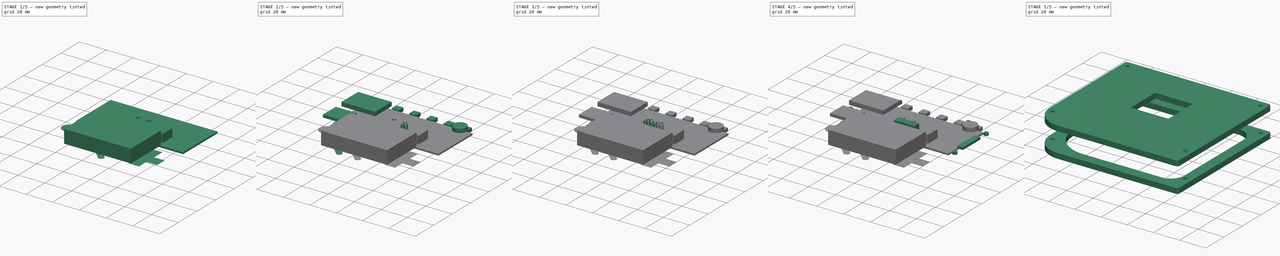
[diagram: build sequence overview — one tinted view per stage of 5, left to right]
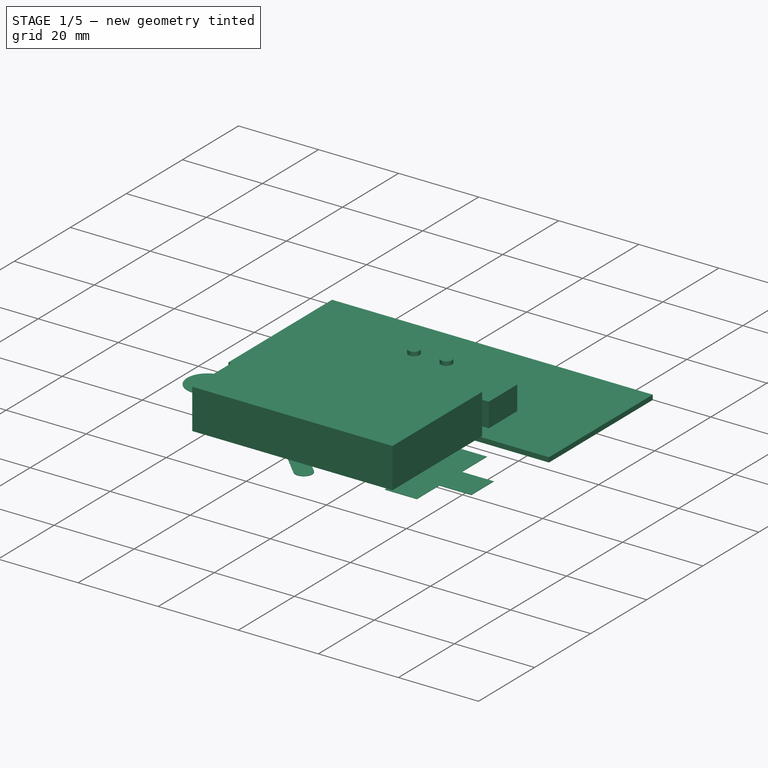
[diagram: stage 1 of 5 — iso view after this stage's code; geometry added in this stage tinted green]
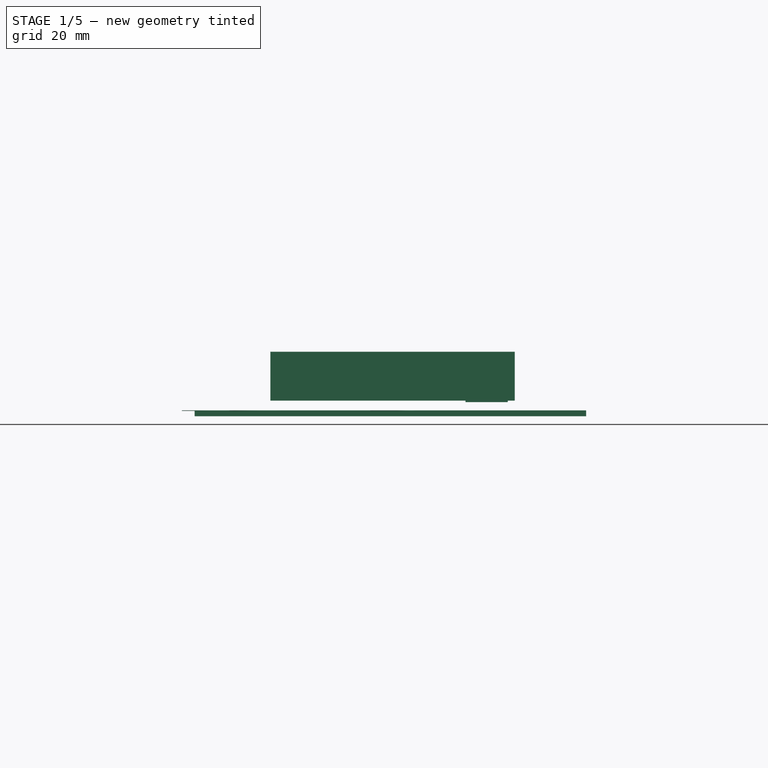
[diagram: stage 1 of 5 — front view after this stage's code; geometry added in this stage tinted green]
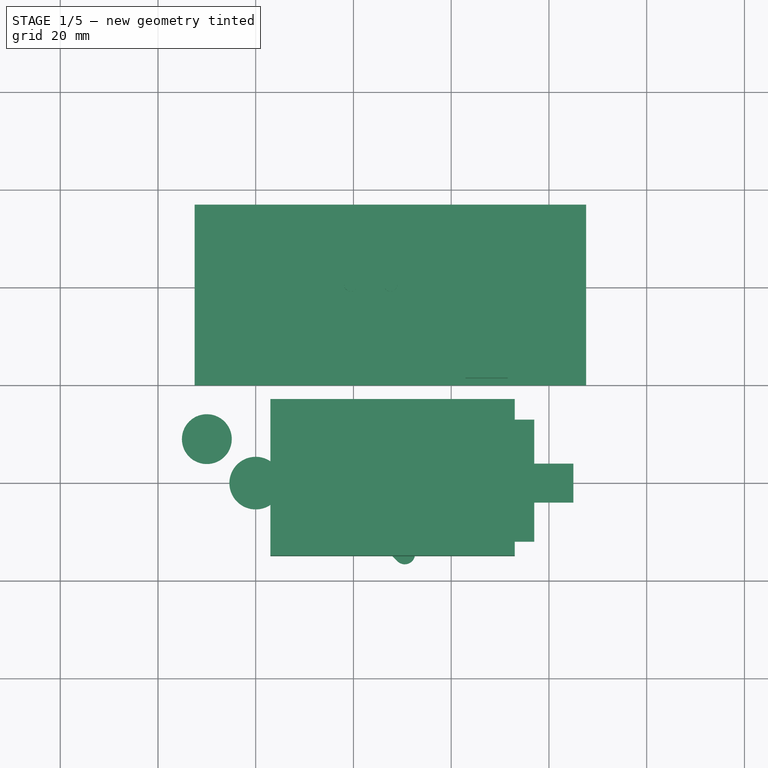
[diagram: stage 1 of 5 — top view after this stage's code; geometry added in this stage tinted green]
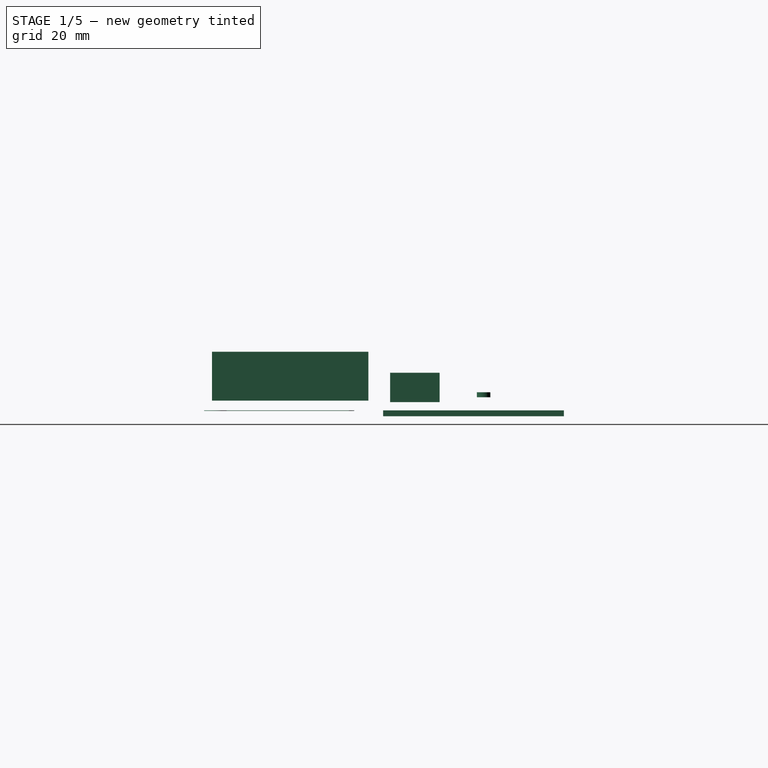
[diagram: stage 1 of 5 — right view after this stage's code; geometry added in this stage tinted green]
FCSTD DOCUMENT  (FreeCAD 0.16R6710 (Git))
Label: case002gbish
License: All rights reserved
LicenseURL: http://en.wikipedia.org/wiki/All_rights_reserved
objects: Part::Extrusion×38, Part::Feature×32, Sketcher::SketchObject×10, Part::MultiFuse×3, Part::Cut×2, Part::Compound×2, Part::FeaturePython×1, Part::Box×1
note: 89 computed .brp shape members not serialized (recipe doc carries the construction recipe); baked Part::Feature solids carry a one-line shape summary decoded from their .brp

FEATURE [Part::Extrusion] Extrude_Wire007  label="Select_Extrude"
  Base = -> Wire007
  Dir = (0,0,-0.1)
  Solid = true
FEATURE [Part::Extrusion] Extrude_Circle019  label="abtn_Extrude"
  Base = -> Circle019
  Dir = (0,0,-0.1)
  Solid = true
FEATURE [Part::Extrusion] Extrude_Circle020  label="bbtn_Extrude"
  Base = -> Circle020
  Dir = (0,0,-0.1)
  Solid = true
FEATURE [Sketcher::SketchObject] Sketch004
  sketch-geometry (13):
    g0: LineSegment StartX=77 StartY=24 StartZ=0 EndX=85 EndY=24 EndZ=0
    g1: LineSegment StartX=85 StartY=24 StartZ=0 EndX=85 EndY=16 EndZ=0
    g2: LineSegment StartX=85 StartY=16 StartZ=0 EndX=77 EndY=16 EndZ=0
    g3: LineSegment StartX=77 StartY=16 StartZ=0 EndX=77 EndY=8 EndZ=0
    g4: LineSegment StartX=77 StartY=8 StartZ=0 EndX=69 EndY=8 EndZ=0
    g5: LineSegment StartX=69 StartY=8 StartZ=0 EndX=69 EndY=16 EndZ=0
    g6: LineSegment StartX=69 StartY=16 StartZ=0 EndX=61 EndY=16 EndZ=0
    g7: LineSegment StartX=61 StartY=16 StartZ=0 EndX=61 EndY=24 EndZ=0
    g8: LineSegment StartX=61 StartY=24 StartZ=0 EndX=69 EndY=24 EndZ=0
    g9: LineSegment StartX=69 StartY=24 StartZ=0 EndX=69 EndY=33 EndZ=0
    g10: LineSegment StartX=69 StartY=33 StartZ=0 EndX=77 EndY=33 EndZ=0
    g11: LineSegment StartX=77 StartY=33 StartZ=0 EndX=77 EndY=24.1 EndZ=0
    g12: LineSegment StartX=77 StartY=24 StartZ=0 EndX=77 EndY=24.1 EndZ=0
  constraints (4):
    c: DistanceX(g0) = 77
    c: DistanceY(g0) = 24
    c: Coincident(g0,g12)
    c: Coincident(g11,g12)
FEATURE [Part::Extrusion] Extrude_Sketch004  label="dpad001"
  Base = -> Sketch004
  Dir = (0,0,-0.1)
  Solid = true
FEATURE [Part::Extrusion] Extrude_Wire002  label="batConOutline_Extrude"
  Base = -> Wire002
  Dir = (0,0,6)
  Solid = true
FEATURE [Part::Extrusion] Extrude_Wire005  label="lcd_Extrude"
  Base = -> Wire005
  Dir = (0,0,-1.2)
  Solid = true
FEATURE [Part::Extrusion] Extrude_Sketch  label="Buttons_Extrude"
  Base = -> Sketch
  Dir = (0,0,1)
  Solid = true
FEATURE [Sketcher::SketchObject] Sketch005
  ExternalGeometry = -> [Extrude_Sketch]
  Placement = pos=(0,0,2.7) rot=(0,0,1;0rad)
  Support = -> Extrude_Sketch [Face6]
  sketch-geometry (7):
    g0: Circle CenterX=39.4787 CenterY=60.5688 CenterZ=0 NormalX=0 NormalY=0 NormalZ=1 Radius=1.38631
    g1: Circle CenterX=47.5742 CenterY=60.5688 CenterZ=0 NormalX=0 NormalY=0 NormalZ=1 Radius=1.38631
    g2: LineSegment [constr] StartX=42.0765 StartY=63.1395 StartZ=0 EndX=39.4787 EndY=60.5688 EndZ=0
    g3: LineSegment [constr] StartX=39.4787 StartY=60.5688 StartZ=0 EndX=36.8809 EndY=57.9981 EndZ=0
    g4: LineSegment [constr] StartX=39.4787 StartY=60.5688 StartZ=0 EndX=36.8809 EndY=63.1395 EndZ=0
    g5: LineSegment [constr] StartX=44.9764 StartY=63.1395 StartZ=0 EndX=47.5742 EndY=60.5688 EndZ=0
    g6: LineSegment [constr] StartX=47.5742 StartY=60.5688 StartZ=0 EndX=50.172 EndY=63.1395 EndZ=0
  constraints (15):
    c: Coincident(g2,g-4)
    c: Coincident(g3,g0)
    c: Coincident(g3,g-5)
    c: Coincident(g4,g0)
    c: Coincident(g4,g-4)
    c: Coincident(g5,g-3)
    c: Coincident(g5,g1)
    c: Coincident(g6,g1)
    c: Coincident(g6,g-3)
    c: Equal(g6,g5)
    c: Equal(g5,g2)
    c: Equal(g2,g4)
    c: Equal(g4,g3)
    c: Coincident(g0,g2)
    c: Equal(g0,g1)
FEATURE [Part::Extrusion] Extrude_Sketch005  label="Sketch005_Extrude"
  Base = -> Sketch005
  Dir = (0,0,1)
  Solid = true
FEATURE [Part::Box] Box  label="Battery"
  Height = 10
  Length = 50
  Placement = pos=(23,5,2) rot=(0,0,1;0rad)
  Width = 32
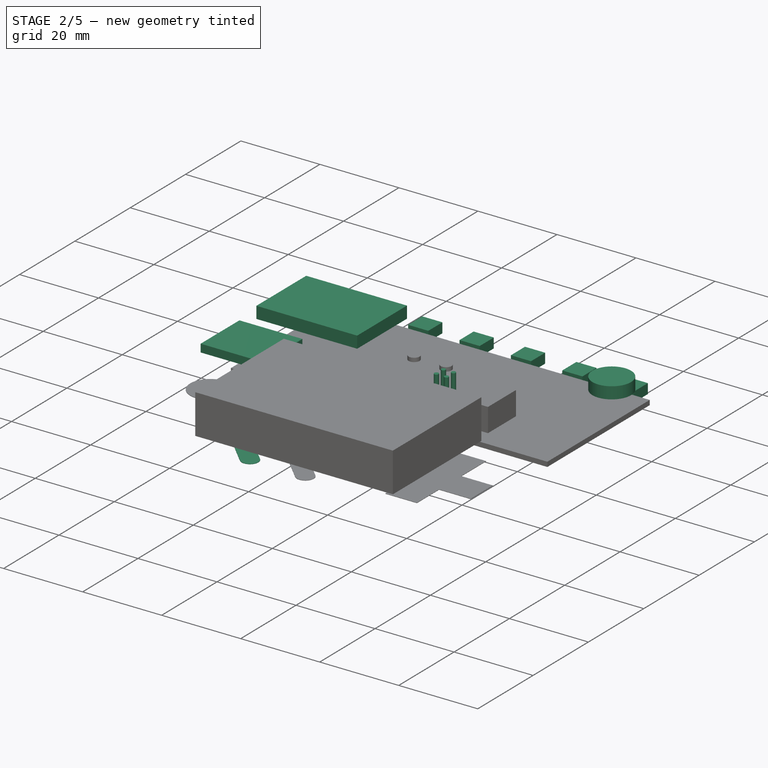
[diagram: stage 2 of 5 — iso view after this stage's code; geometry added in this stage tinted green]
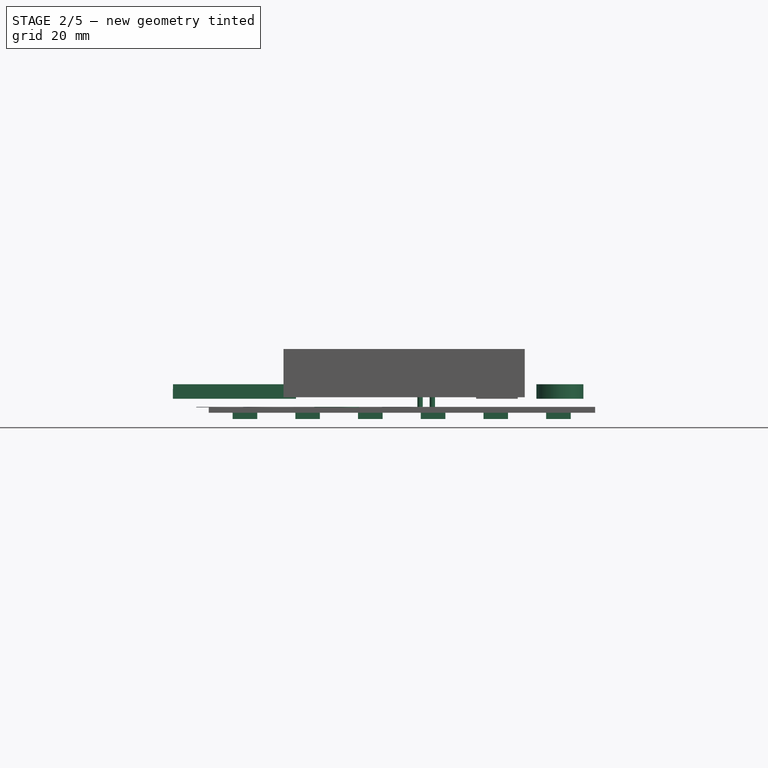
[diagram: stage 2 of 5 — front view after this stage's code; geometry added in this stage tinted green]
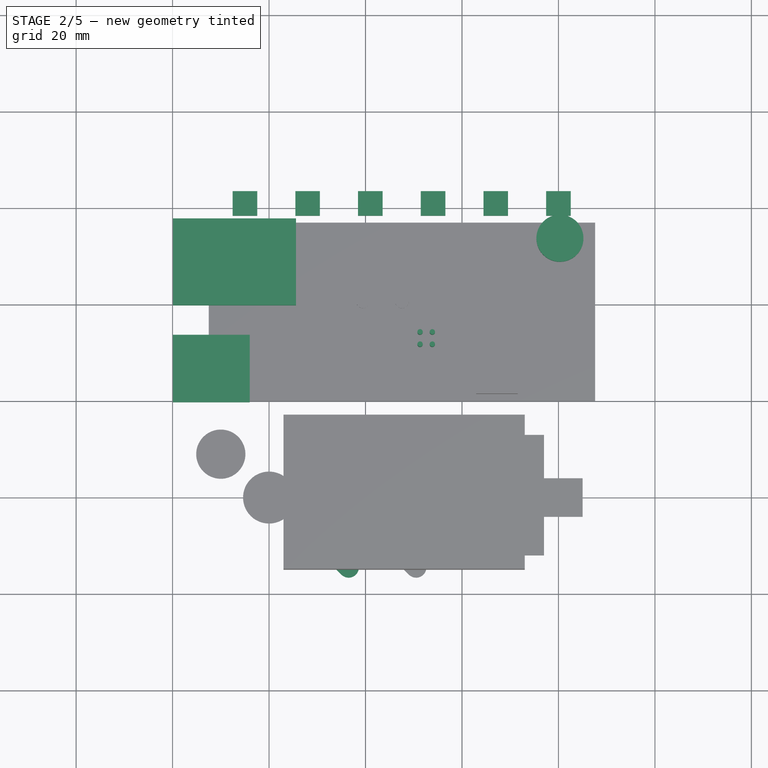
[diagram: stage 2 of 5 — top view after this stage's code; geometry added in this stage tinted green]
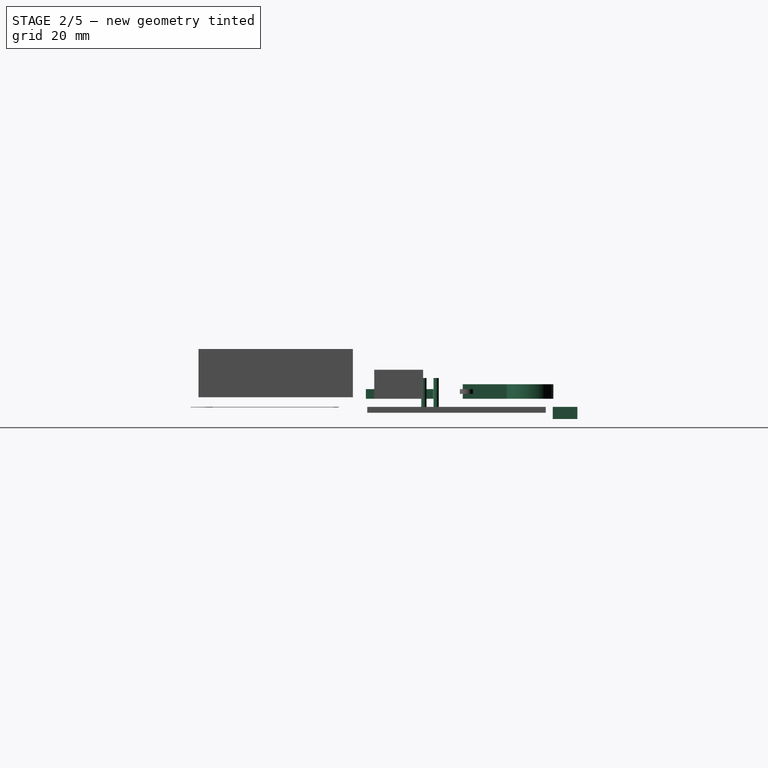
[diagram: stage 2 of 5 — right view after this stage's code; geometry added in this stage tinted green]
FEATURE [Part::Extrusion] Extrude_Circle015  label="Circle015_Extrude"
  Base = -> Circle015
  Dir = (0,0,6)
  Solid = true
FEATURE [Part::Extrusion] Extrude_Circle016  label="Circle016_Extrude"
  Base = -> Circle016
  Dir = (0,0,6)
  Solid = true
FEATURE [Part::Extrusion] Extrude_Circle017  label="Circle017_Extrude"
  Base = -> Circle017
  Dir = (0,0,6)
  Solid = true
FEATURE [Part::Extrusion] Extrude_Circle018  label="Circle018_Extrude"
  Base = -> Circle018
  Dir = (0,0,6)
  Solid = true
FEATURE [Part::Extrusion] Extrude_Sketch002  label="sdouline_Extrude"
  Base = -> Sketch002
  Dir = (0,0,2)
  Solid = true
FEATURE [Part::Extrusion] Extrude_Wire003  label="ESP32Outline_Extrude"
  Base = -> Wire003
  Dir = (0,0,3)
  Solid = true
FEATURE [Part::Extrusion] Extrude_Polyline1548  label="VibratorOutline_Extrude"
  Base = -> Polyline1548
  Dir = (0,0,3)
  Solid = true
FEATURE [Part::Extrusion] Extrude_Sketch003  label="ledsOutline_Extrude"
  Base = -> Sketch003
  Dir = (0,0,-2.5)
  Solid = true
FEATURE [Part::Extrusion] Extrude_Wire006  label="Start_Extrude"
  Base = -> Wire006
  Dir = (0,0,-0.1)
  Solid = true
FEATURE [Part::Compound] Compound  label="CapButtons"
  Links = -> [Extrude_Sketch004,Extrude_Wire006,Extrude_Circle019,Extrude_Wire007,Extrude_Circle020,Fusion001001]
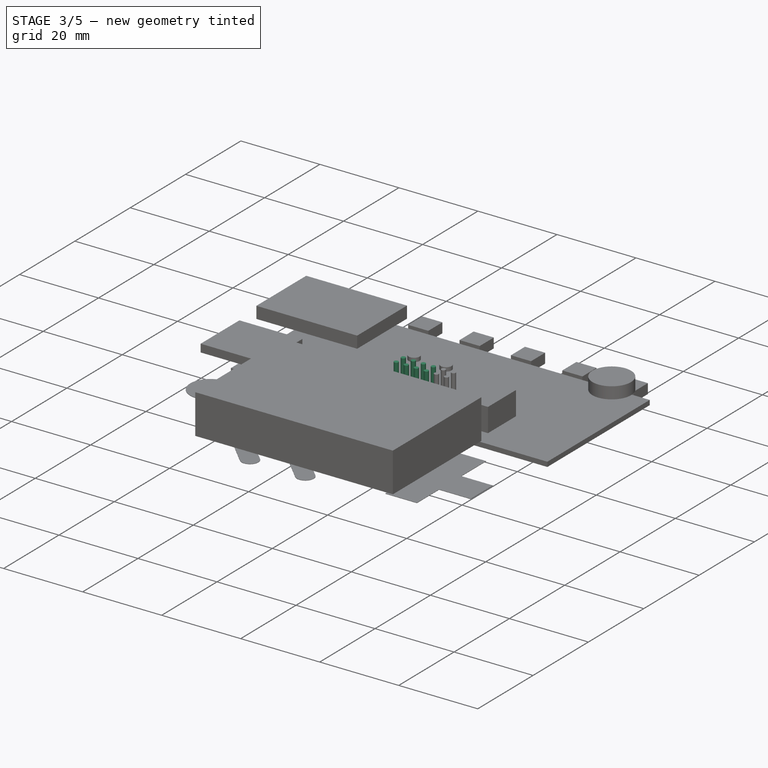
[diagram: stage 3 of 5 — iso view after this stage's code; geometry added in this stage tinted green]
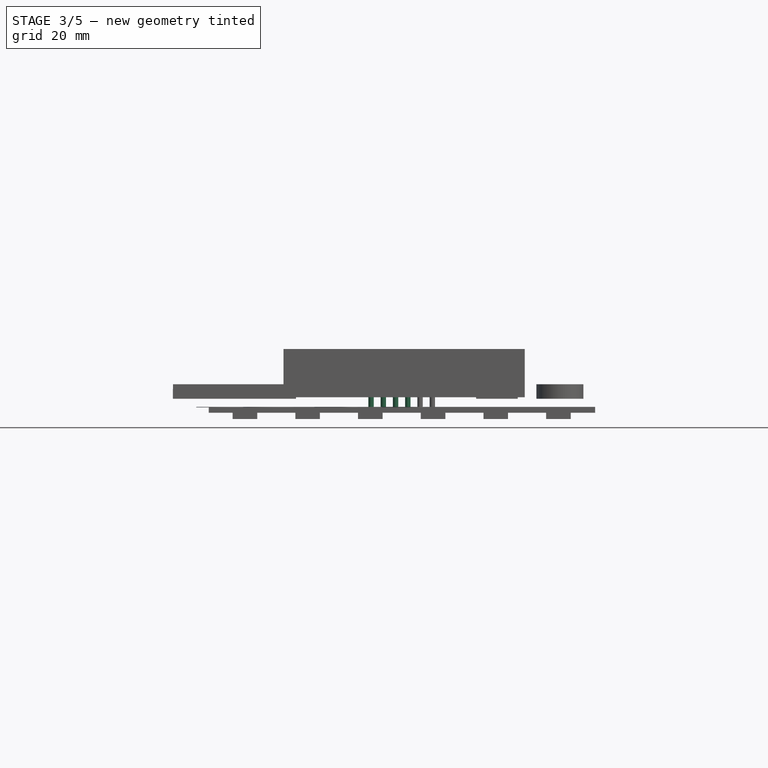
[diagram: stage 3 of 5 — front view after this stage's code; geometry added in this stage tinted green]
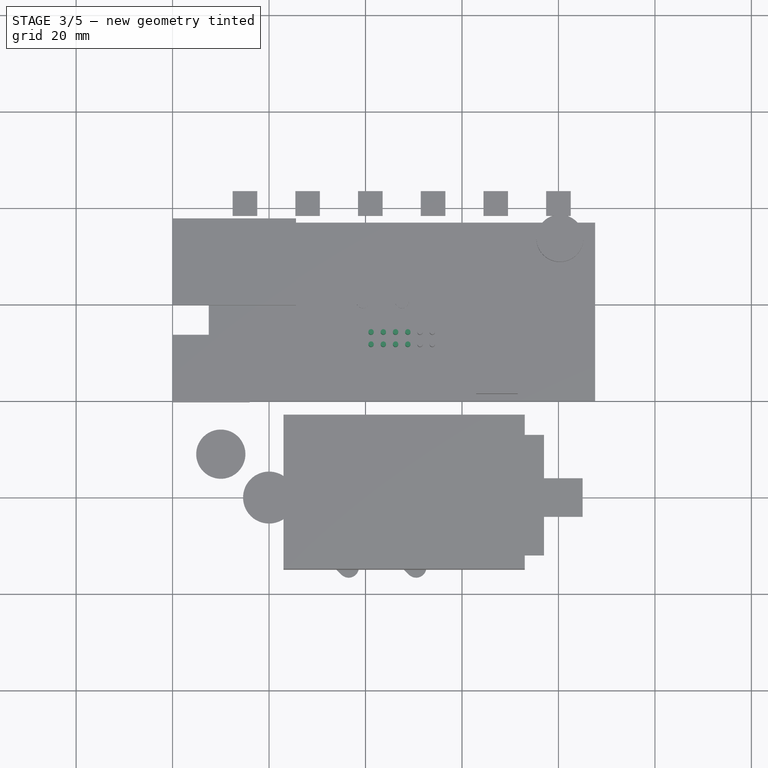
[diagram: stage 3 of 5 — top view after this stage's code; geometry added in this stage tinted green]
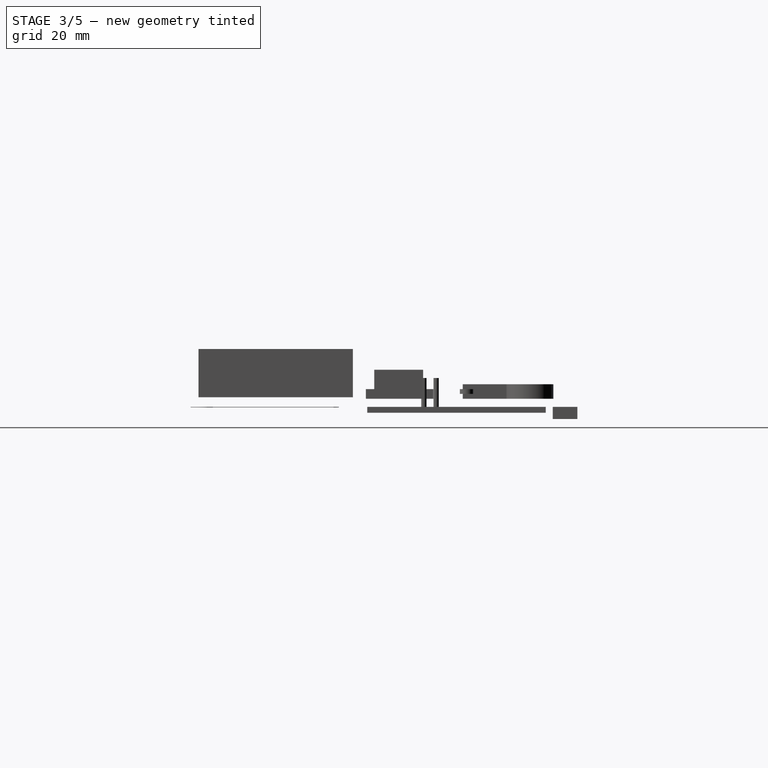
[diagram: stage 3 of 5 — right view after this stage's code; geometry added in this stage tinted green]
FEATURE [Part::Extrusion] Extrude_Circle007  label="Circle007_Extrude"
  Base = -> Circle007
  Dir = (0,0,6)
  Solid = true
FEATURE [Part::Extrusion] Extrude_Circle008  label="Circle008_Extrude"
  Base = -> Circle008
  Dir = (0,0,6)
  Solid = true
FEATURE [Part::Extrusion] Extrude_Circle009  label="Circle009_Extrude"
  Base = -> Circle009
  Dir = (0,0,6)
  Solid = true
FEATURE [Part::Extrusion] Extrude_Circle010  label="Circle010_Extrude"
  Base = -> Circle010
  Dir = (0,0,6)
  Solid = true
FEATURE [Part::Extrusion] Extrude_Circle011  label="Circle011_Extrude"
  Base = -> Circle011
  Dir = (0,0,6)
  Solid = true
FEATURE [Part::Extrusion] Extrude_Circle012  label="Circle012_Extrude"
  Base = -> Circle012
  Dir = (0,0,6)
  Solid = true
FEATURE [Part::Extrusion] Extrude_Circle013  label="Circle013_Extrude"
  Base = -> Circle013
  Dir = (0,0,6)
  Solid = true
FEATURE [Part::Extrusion] Extrude_Circle014  label="Circle014_Extrude"
  Base = -> Circle014
  Dir = (0,0,6)
  Solid = true
FEATURE [Part::MultiFuse] Fusion001  label="AuxConn"
  Shapes = -> [Extrude_Circle007,Extrude_Circle015,Extrude_Circle010,Extrude_Circle012,Extrude_Circle013,Extrude_Circle017,Extrude_Circle018,Extrude_Circle008,Extrude_Circle011,Extrude_Circle009,Extrude_Circle016,Extrude_Circle014]
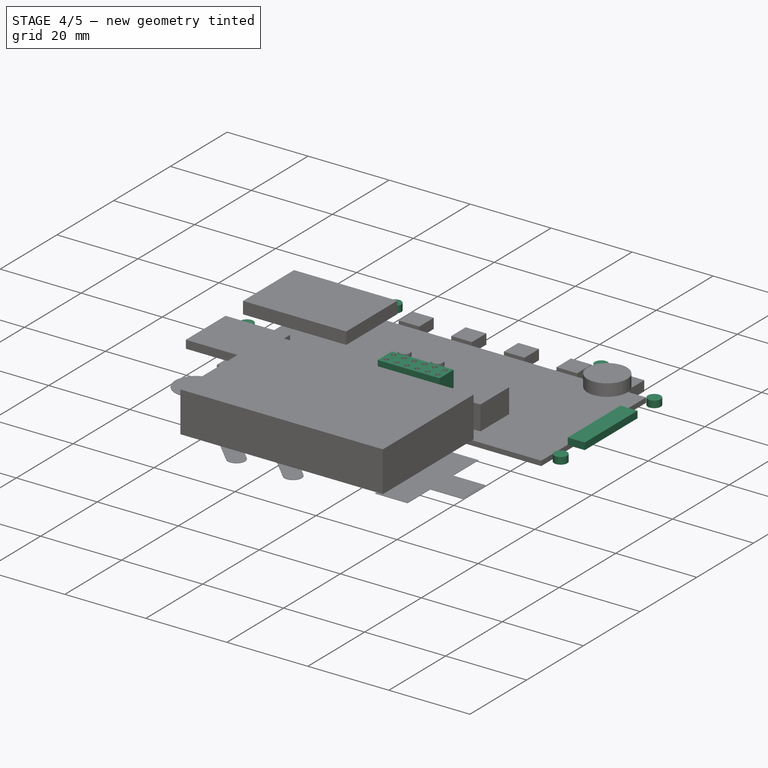
[diagram: stage 4 of 5 — iso view after this stage's code; geometry added in this stage tinted green]
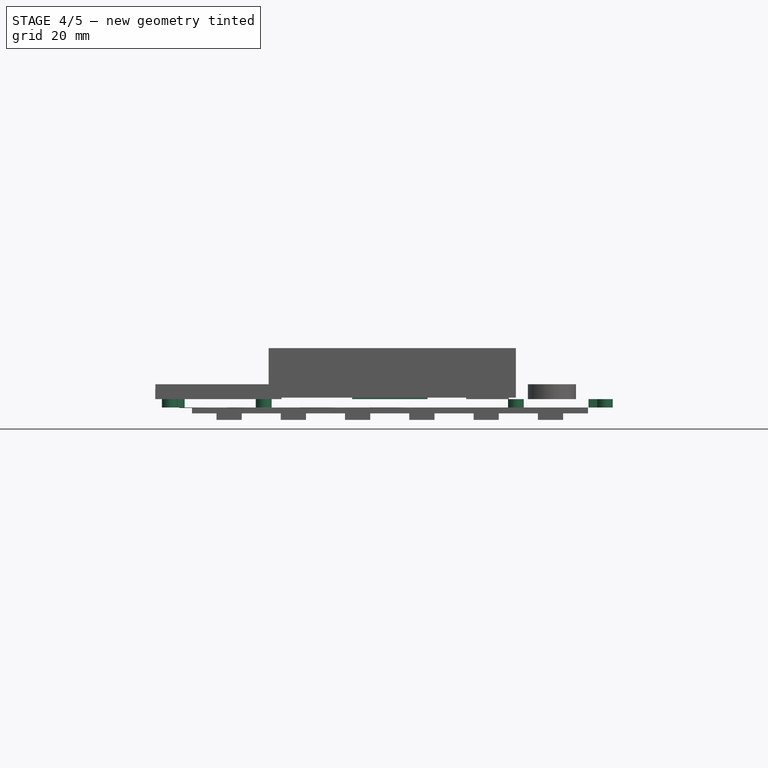
[diagram: stage 4 of 5 — front view after this stage's code; geometry added in this stage tinted green]
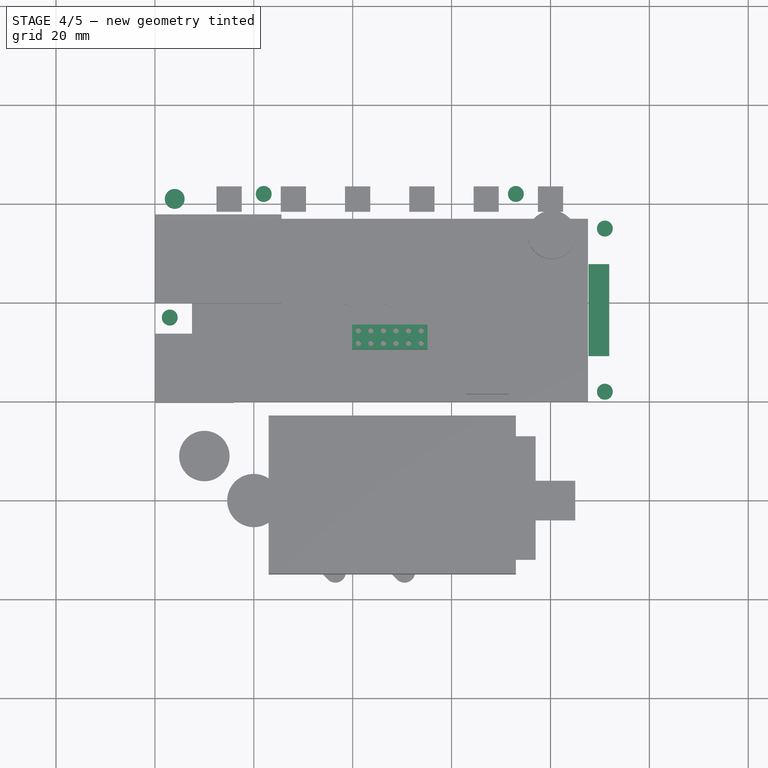
[diagram: stage 4 of 5 — top view after this stage's code; geometry added in this stage tinted green]
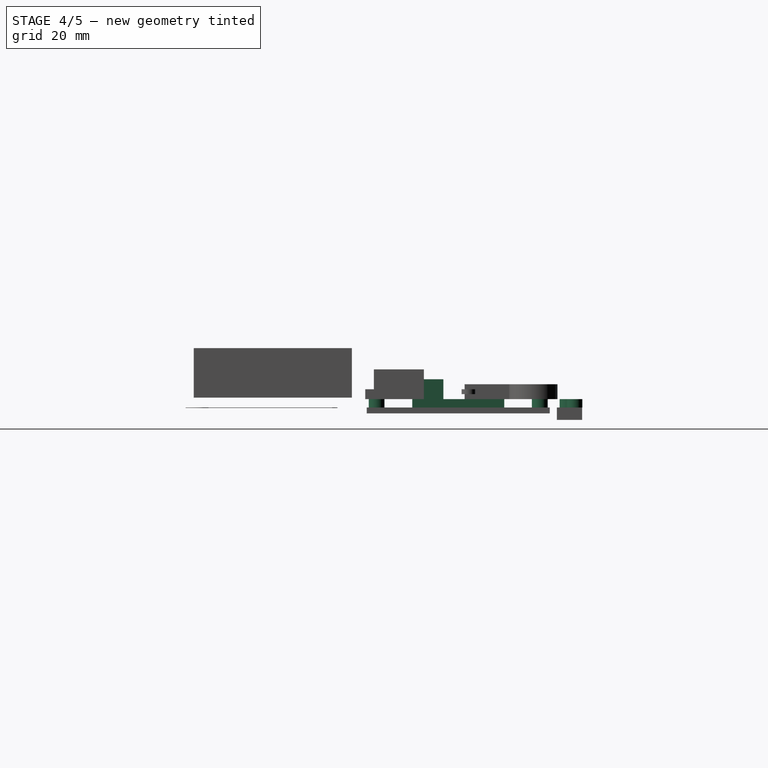
[diagram: stage 4 of 5 — right view after this stage's code; geometry added in this stage tinted green]
FEATURE [Part::Extrusion] Extrude_Circle001  label="Circle001_Extrude"
  Base = -> Circle001
  Dir = (0,0,1.7)
  Solid = true
FEATURE [Part::Extrusion] Extrude_Circle002  label="Circle002_Extrude"
  Base = -> Circle002
  Dir = (0,0,1.7)
  Solid = true
FEATURE [Part::Extrusion] Extrude_Circle003  label="Circle003_Extrude"
  Base = -> Circle003
  Dir = (0,0,1.7)
  Solid = true
FEATURE [Part::Extrusion] Extrude_Circle004  label="Circle004_Extrude"
  Base = -> Circle004
  Dir = (0,0,1.7)
  Solid = true
FEATURE [Part::Extrusion] Extrude_Circle005  label="Circle005_Extrude"
  Base = -> Circle005
  Dir = (0,0,1.7)
  Solid = true
FEATURE [Part::Extrusion] Extrude_Circle006  label="Circle006_Extrude"
  Base = -> Circle006
  Dir = (0,0,1.7)
  Solid = true
FEATURE [Part::Feature] Wire
  shape: bbox 4.2 x 18.6 x 2e-07 mm, 0 faces, 0 solids (baked)
FEATURE [Part::Extrusion] Extrude_Wire  label="lcdWires"
  Base = -> Wire
  Dir = (0,0,1.7)
  Solid = true
FEATURE [Part::Extrusion] Extrude_Sketch001  label="auxConnAoutline_Extrude"
  Base = -> Sketch001
  Dir = (0,0,4)
  Solid = true
FEATURE [Part::FeaturePython] Clone  label="Clone of AuxConn"  # Draft clone (typed FeaturePython)
  Objects = -> [Fusion001]
  Scale = (1,1,1)
FEATURE [Part::Cut] Cut001  label="AuxConnector"
  Base = -> Extrude_Sketch001
  Tool = -> Clone
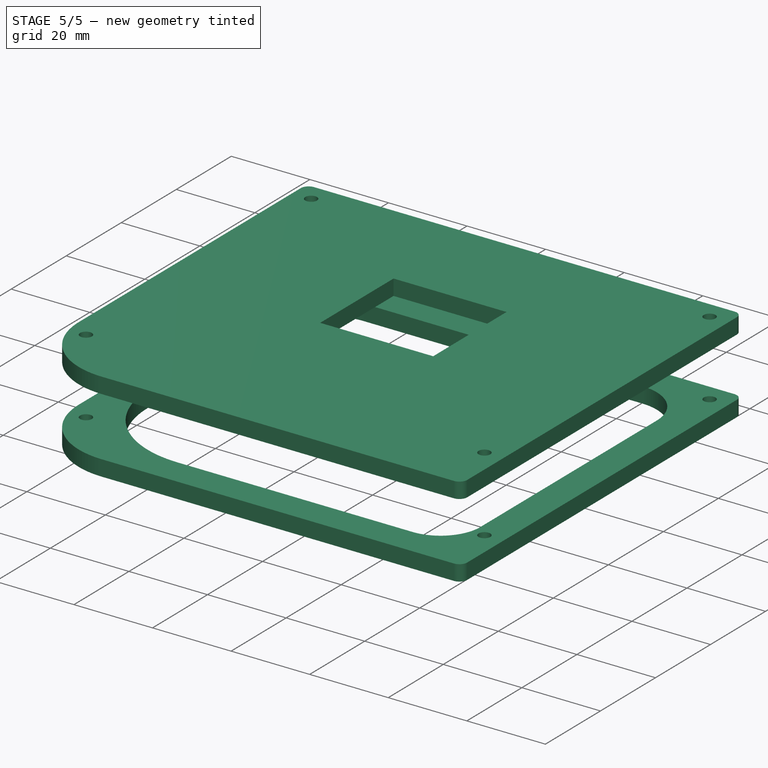
[diagram: stage 5 of 5 — iso view after this stage's code; geometry added in this stage tinted green]
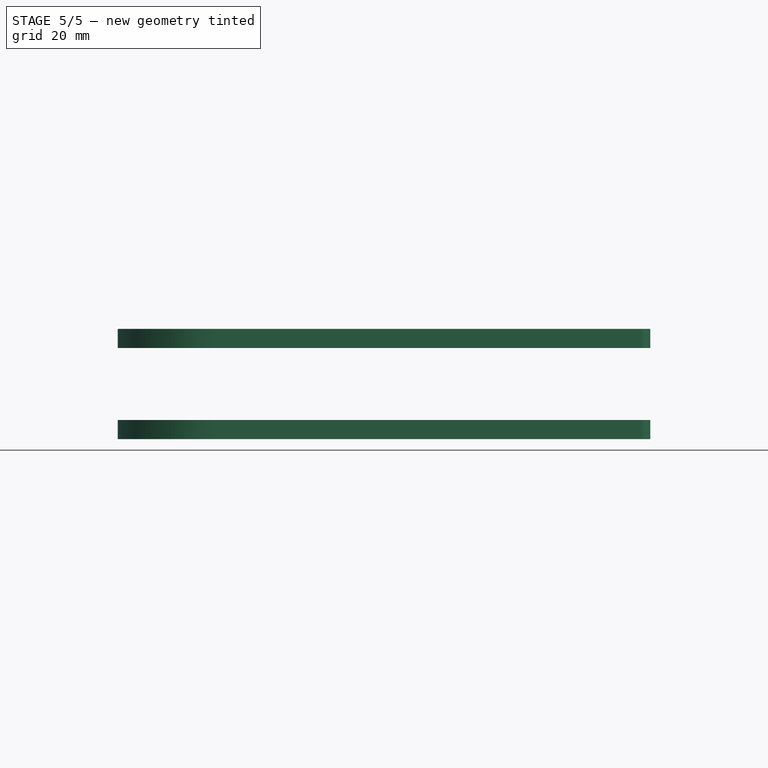
[diagram: stage 5 of 5 — front view after this stage's code; geometry added in this stage tinted green]
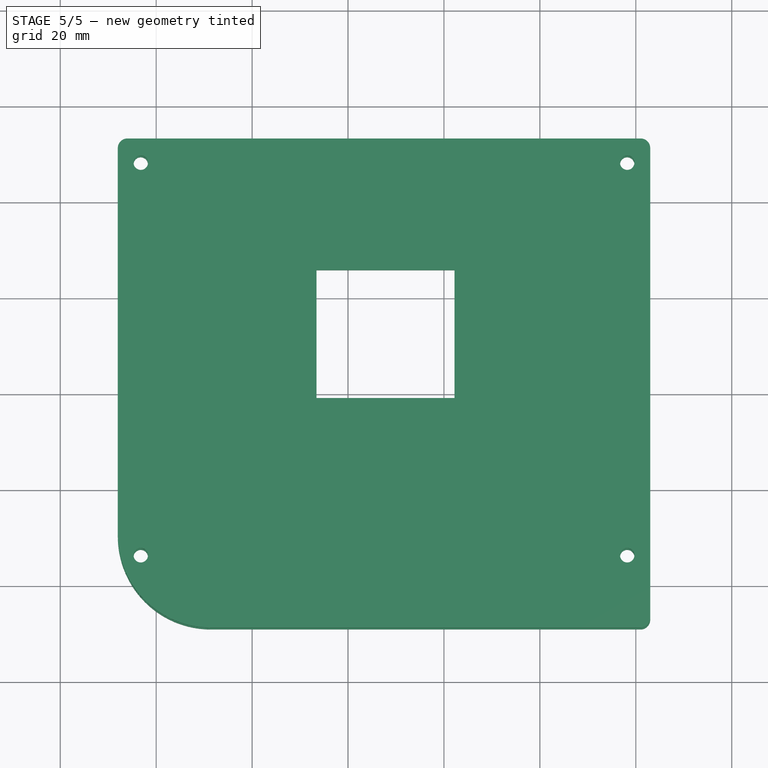
[diagram: stage 5 of 5 — top view after this stage's code; geometry added in this stage tinted green]
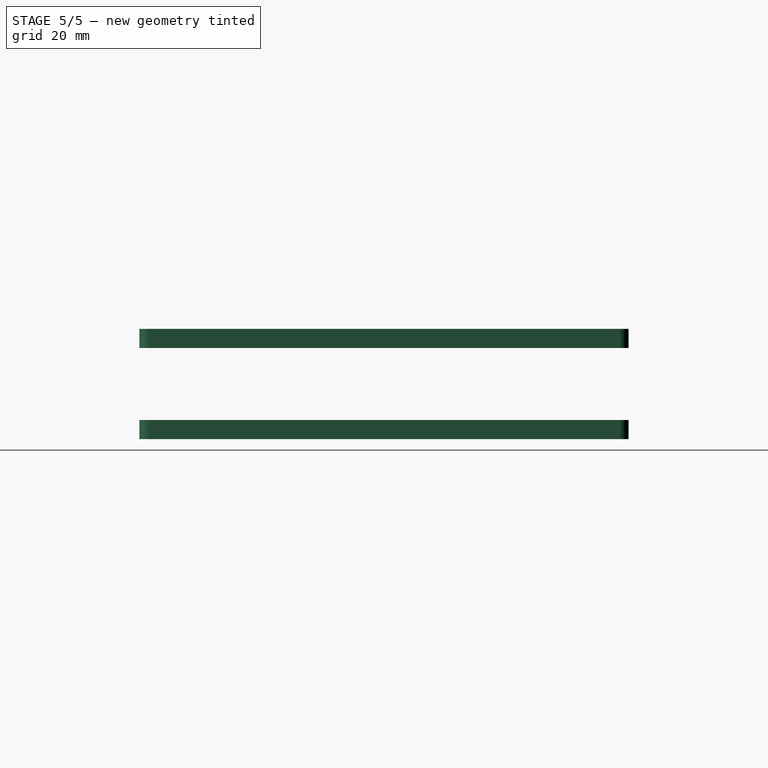
[diagram: stage 5 of 5 — right view after this stage's code; geometry added in this stage tinted green]
FEATURE [Part::Feature] Circle
  shape: bbox 4 x 4 x 2e-07 mm, 0 faces, 0 solids (baked)
FEATURE [Part::Feature] Circle001
  shape: bbox 4 x 4 x 2e-07 mm, 0 faces, 0 solids (baked)
FEATURE [Part::Feature] Circle002 .. Circle006  x5 (patterned run collapsed; names and placements below)
  shape: bbox 3.2 x 3.2 x 2e-07 mm, 0 faces, 0 solids (baked)
FEATURE [Part::Feature] Circle007 .. Circle018  x12 (patterned run collapsed; names and placements below)
  shape: bbox 1.1 x 1.1 x 2e-07 mm, 0 faces, 0 solids (baked)
FEATURE [Part::Feature] Face
  shape: bbox 95 x 86 x 2e-07 mm, 1 faces, 0 solids (baked)
FEATURE [Part::Extrusion] Extrude_Face  label="pcbOutline"
  Base = -> Face
  Dir = (0,0,1.7)
  Solid = true
FEATURE [Part::Extrusion] Extrude_Circle  label="Circle_Extrude"
  Base = -> Circle
  Dir = (0,0,1.7)
  Solid = true
FEATURE [Part::MultiFuse] Fusion  label="Holes"
  Shapes = -> [Extrude_Circle,Extrude_Circle002,Extrude_Circle001,Extrude_Circle005,Extrude_Circle003,Extrude_Circle004,Extrude_Circle006]
FEATURE [Part::Feature] Wire001  label="BatteryArea"
  Placement = pos=(0,0,1.7) rot=(0,0,1;0rad)
  shape: bbox 58.5 x 39.7 x 2e-07 mm, 0 faces, 0 solids (baked)
FEATURE [Part::Feature] Wire002  label="batConOutline"
  Placement = pos=(0,0,1.7) rot=(0,0,1;0rad)
  shape: bbox 8.636 x 10.13 x 2e-07 mm, 0 faces, 0 solids (baked)
FEATURE [Part::Feature] Wire003  label="ESP32Outline"
  Placement = pos=(0,0,1.7) rot=(0,0,1;0rad)
  shape: bbox 25.5 x 18 x 2e-07 mm, 0 faces, 0 solids (baked)
FEATURE [Part::Feature] Polyline1548  label="VibratorOutline"
  Placement = pos=(0,0,1.7) rot=(0,0,1;0rad)
  shape: bbox 9.751 x 9.751 x 2e-07 mm, 0 faces, 0 solids (baked)
FEATURE [Sketcher::SketchObject] Sketch  label="Buttons"
  Placement = pos=(0,0,1.7) rot=(0,0,1;0rad)
  sketch-geometry (9):
    g0: LineSegment StartX=42.0765 StartY=63.1395 StartZ=0 EndX=36.8809 EndY=63.1395 EndZ=0
    g1: LineSegment StartX=36.8809 StartY=63.1395 StartZ=0 EndX=36.8809 EndY=57.9981 EndZ=0
    g2: LineSegment StartX=36.8809 StartY=57.9981 StartZ=0 EndX=42.0765 EndY=57.9981 EndZ=0
    g3: LineSegment StartX=42.0765 StartY=57.9981 StartZ=0 EndX=42.0765 EndY=63.1395 EndZ=0
    g4: LineSegment StartX=44.9764 StartY=63.1395 StartZ=0 EndX=50.172 EndY=63.1395 EndZ=0
    g5: LineSegment StartX=50.172 StartY=63.1395 StartZ=0 EndX=50.172 EndY=57.9981 EndZ=0
    g6: LineSegment StartX=50.172 StartY=57.9981 StartZ=0 EndX=44.9764 EndY=57.9981 EndZ=0
    g7: LineSegment StartX=44.9764 StartY=57.9981 StartZ=0 EndX=44.9764 EndY=63.1395 EndZ=0
    g8: LineSegment [constr] StartX=42.0765 StartY=63.1395 StartZ=0 EndX=44.9764 EndY=63.1395 EndZ=0
  constraints (21):
    c: Coincident(g0,g1)
    c: Coincident(g1,g2)
    c: Coincident(g2,g3)
    c: Coincident(g3,g0)
    c: Horizontal(g0)
    c: Horizontal(g2)
    c: Vertical(g1)
    c: Vertical(g3)
    c: Coincident(g4,g5)
    c: Coincident(g5,g6)
    c: Coincident(g6,g7)
    c: Coincident(g7,g4)
    c: Horizontal(g4)
    c: Horizontal(g6)
    c: Vertical(g5)
    c: Vertical(g7)
    c: Equal(g0,g4)
    c: Equal(g3,g7)
    c: Coincident(g4,g8)
    c: Coincident(g0,g8)
    c: Horizontal(g8)
FEATURE [Sketcher::SketchObject] Sketch001  label="auxConnAoutline"
  Placement = pos=(0,0,1.7) rot=(1,0,0;3.14159rad)
  sketch-geometry (7):
    g0: LineSegment StartX=55.125 StartY=-50.5 StartZ=0 EndX=39.875 EndY=-50.5 EndZ=0
    g1: LineSegment StartX=39.875 StartY=-50.5 StartZ=0 EndX=39.875 EndY=-55.5 EndZ=0
    g2: LineSegment StartX=39.875 StartY=-55.5 StartZ=0 EndX=55.125 EndY=-55.5 EndZ=0
    g3: LineSegment StartX=55.125 StartY=-55.5 StartZ=0 EndX=55.125 EndY=-50.5 EndZ=0
    g4: LineSegment [constr] StartX=41.15 StartY=-51.73 StartZ=0 EndX=39.875 EndY=-50.5 EndZ=0
    g5: LineSegment [constr] StartX=41.15 StartY=-54.27 StartZ=0 EndX=39.875 EndY=-55.5 EndZ=0
    g6: LineSegment [constr] StartX=53.85 StartY=-51.73 StartZ=0 EndX=55.125 EndY=-50.5 EndZ=0
  constraints (15):
    c: Coincident(g0,g1)
    c: Coincident(g1,g2)
    c: Coincident(g2,g3)
    c: Coincident(g3,g0)
    c: Horizontal(g0)
    c: Horizontal(g2)
    c: Vertical(g1)
    c: Vertical(g3)
    c: Coincident(g4,g0)
    c: Coincident(g5,g1)
    c: Coincident(g6,g0)
    c: Equal(g6,g4)
    c: Equal(g4,g5)
    c: Distance(g0) = 15.25
    c: Distance(g3) = 5
FEATURE [Sketcher::SketchObject] Sketch002  label="sdouline"
  Placement = pos=(0,0,1.7) rot=(0,0,1;0rad)
  sketch-geometry (4):
    g0: LineSegment StartX=16.0011 StartY=53.7008 StartZ=0 EndX=0.063418 EndY=53.7008 EndZ=0
    g1: LineSegment StartX=0.063418 StartY=53.7008 StartZ=0 EndX=0.063418 EndY=39.6988 EndZ=0
    g2: LineSegment StartX=0.063418 StartY=39.6988 StartZ=0 EndX=16.0011 EndY=39.6988 EndZ=0
    g3: LineSegment StartX=16.0011 StartY=39.6988 StartZ=0 EndX=16.0011 EndY=53.7008 EndZ=0
  constraints (8):
    c: Coincident(g0,g1)
    c: Coincident(g1,g2)
    c: Coincident(g2,g3)
    c: Coincident(g3,g0)
    c: Horizontal(g0)
    c: Horizontal(g2)
    c: Vertical(g1)
    c: Vertical(g3)
FEATURE [Part::Feature] Wire005  label="lcd"
  shape: bbox 80.1 x 37 x 2e-07 mm, 0 faces, 0 solids (baked)
FEATURE [Part::Feature] Wire006  label="Start"
  shape: bbox 9.243 x 9.243 x 2e-07 mm, 0 faces, 0 solids (baked)
FEATURE [Part::Feature] Wire007  label="Select"
  shape: bbox 9.243 x 9.243 x 2e-07 mm, 0 faces, 0 solids (baked)
FEATURE [Part::Feature] Circle019  label="abtn"
  shape: bbox 10.2 x 10.2 x 2e-07 mm, 0 faces, 0 solids (baked)
FEATURE [Part::Feature] Circle020  label="bbtn"
  shape: bbox 10.77 x 10.77 x 2e-07 mm, 0 faces, 0 solids (baked)
FEATURE [Sketcher::SketchObject] Sketch003  label="ledsOutline"
  sketch-geometry (29):
    g0: LineSegment StartX=12.45 StartY=83.55 StartZ=0 EndX=17.55 EndY=83.55 EndZ=0
    g1: LineSegment StartX=17.55 StartY=83.55 StartZ=0 EndX=17.55 EndY=78.45 EndZ=0
    g2: LineSegment StartX=17.55 StartY=78.45 StartZ=0 EndX=12.45 EndY=78.45 EndZ=0
    g3: LineSegment StartX=12.45 StartY=78.45 StartZ=0 EndX=12.45 EndY=83.55 EndZ=0
    g4: LineSegment StartX=25.45 StartY=83.55 StartZ=0 EndX=30.55 EndY=83.55 EndZ=0
    g5: LineSegment StartX=30.55 StartY=83.55 StartZ=0 EndX=30.55 EndY=78.45 EndZ=0
    g6: LineSegment StartX=30.55 StartY=78.45 StartZ=0 EndX=25.45 EndY=78.45 EndZ=0
    g7: LineSegment StartX=25.45 StartY=78.45 StartZ=0 EndX=25.45 EndY=83.55 EndZ=0
    g8: LineSegment StartX=38.45 StartY=83.55 StartZ=0 EndX=43.55 EndY=83.55 EndZ=0
    g9: LineSegment StartX=43.55 StartY=83.55 StartZ=0 EndX=43.55 EndY=78.45 EndZ=0
    g10: LineSegment StartX=43.55 StartY=78.45 StartZ=0 EndX=38.45 EndY=78.45 EndZ=0
    g11: LineSegment StartX=38.45 StartY=78.45 StartZ=0 EndX=38.45 EndY=83.55 EndZ=0
    g12: LineSegment StartX=51.45 StartY=83.55 StartZ=0 EndX=56.55 EndY=83.55 EndZ=0
    g13: LineSegment StartX=56.55 StartY=83.55 StartZ=0 EndX=56.55 EndY=78.45 EndZ=0
    g14: LineSegment StartX=56.55 StartY=78.45 StartZ=0 EndX=51.45 EndY=78.45 EndZ=0
    g15: LineSegment StartX=51.45 StartY=78.45 StartZ=0 EndX=51.45 EndY=83.55 EndZ=0
    g16: LineSegment StartX=64.45 StartY=83.55 StartZ=0 EndX=69.55 EndY=83.55 EndZ=0
    g17: LineSegment StartX=69.55 StartY=83.55 StartZ=0 EndX=69.55 EndY=78.45 EndZ=0
    g18: LineSegment StartX=69.55 StartY=78.45 StartZ=0 EndX=64.45 EndY=78.45 EndZ=0
    g19: LineSegment StartX=64.45 StartY=78.45 StartZ=0 EndX=64.45 EndY=83.55 EndZ=0
    g20: LineSegment StartX=77.45 StartY=83.55 StartZ=0 EndX=82.55 EndY=83.55 EndZ=0
    g21: LineSegment StartX=82.55 StartY=83.55 StartZ=0 EndX=82.55 EndY=78.45 EndZ=0
    g22: LineSegment StartX=82.55 StartY=78.45 StartZ=0 EndX=77.45 EndY=78.45 EndZ=0
    g23: LineSegment StartX=77.45 StartY=78.45 StartZ=0 EndX=77.45 EndY=83.55 EndZ=0
    g24: LineSegment [constr] StartX=77.45 StartY=83.55 StartZ=0 EndX=69.55 EndY=83.55 EndZ=0
    g25: LineSegment [constr] StartX=64.45 StartY=83.55 StartZ=0 EndX=56.55 EndY=83.55 EndZ=0
    g26: LineSegment [constr] StartX=51.45 StartY=83.55 StartZ=0 EndX=43.55 EndY=83.55 EndZ=0
    g27: LineSegment [constr] StartX=38.45 StartY=83.55 StartZ=0 EndX=30.55 EndY=83.55 EndZ=0
    g28: LineSegment [constr] StartX=25.45 StartY=83.55 StartZ=0 EndX=17.55 EndY=83.55 EndZ=0
  constraints (82):
    c: Coincident(g0,g1)
    c: Coincident(g1,g2)
    c: Coincident(g2,g3)
    c: Coincident(g3,g0)
    c: Horizontal(g0)
    c: Horizontal(g2)
    c: Vertical(g1)
    c: Vertical(g3)
    c: Coincident(g4,g5)
    c: Coincident(g5,g6)
    c: Coincident(g6,g7)
    c: Coincident(g7,g4)
    c: Horizontal(g4)
    c: Horizontal(g6)
    c: Vertical(g5)
    c: Vertical(g7)
    c: Coincident(g8,g9)
    c: Coincident(g9,g10)
    c: Coincident(g10,g11)
    c: Coincident(g11,g8)
    c: Horizontal(g8)
    c: Horizontal(g10)
    c: Vertical(g9)
    c: Vertical(g11)
    c: Coincident(g12,g13)
    c: Coincident(g13,g14)
    c: Coincident(g14,g15)
    c: Coincident(g15,g12)
    c: Horizontal(g12)
    c: Horizontal(g14)
    c: Vertical(g13)
    c: Vertical(g15)
    c: Coincident(g16,g17)
    c: Coincident(g17,g18)
    c: Coincident(g18,g19)
    c: Coincident(g19,g16)
    c: Horizontal(g16)
    c: Horizontal(g18)
    c: Vertical(g17)
    c: Vertical(g19)
    c: Coincident(g20,g21)
    c: Coincident(g21,g22)
    c: Coincident(g22,g23)
    c: Coincident(g23,g20)
    c: Horizontal(g20)
    c: Horizontal(g22)
    c: Vertical(g21)
    c: Vertical(g23)
    c: Coincident(g24,g20)
    c: Coincident(g24,g16)
    c: Coincident(g25,g16)
    c: Coincident(g25,g12)
    c: Coincident(g26,g12)
    c: Coincident(g26,g8)
    c: Horizontal(g26)
    c: Coincident(g27,g8)
    c: Coincident(g27,g4)
    c: Horizontal(g27)
    c: Coincident(g28,g4)
    c: Coincident(g28,g0)
    c: Horizontal(g28)
    c: Horizontal(g24)
    c: Horizontal(g25)
    c: Equal(g20,g16)
    c: Equal(g16,g12)
    c: Equal(g12,g8)
    c: Equal(g8,g4)
    c: Equal(g4,g0)
    c: Equal(g21,g17)
    c: Equal(g17,g13)
    c: Equal(g13,g9)
    c: Equal(g9,g5)
    c: Equal(g5,g1)
    c: Equal(g24,g25)
    c: Equal(g25,g26)
    c: Equal(g26,g27)
    c: Equal(g27,g28)
    c: DistanceX(g0) = 12.45
    c: DistanceY(g0) = 83.55
    c: Equal(g3,g0)
    c: Distance(g0) = 5.1
    c: Distance(g24) = 7.9
FEATURE [Part::Feature] Fusion001001  label="btnNames"
  shape: bbox 46.55 x 23.5 x 2e-07 mm, 0 faces, 0 solids (baked)
FEATURE [Part::MultiFuse] Fusion001002
  Shapes = -> [Fusion,Fusion001,Extrude_Wire]
FEATURE [Part::Cut] Cut
  Base = -> Extrude_Face
  Tool = -> Fusion001002
FEATURE [Part::Compound] Compound001  label="Badge2017"
  Links = -> [Wire001,Extrude_Wire005,Box,Extrude_Sketch,Extrude_Polyline1548,Extrude_Wire003,Extrude_Sketch002,Extrude_Wire002,Cut,Extrude_Sketch005,Extrude_Sketch003,Compound,Cut001]
FEATURE [Sketcher::SketchObject] Sketch006
  ExternalGeometry = -> [Compound001]
  Placement = pos=(0,0,3.7) rot=(0,0,1;0rad)
  Support = -> Compound001 [Face42]
  sketch-geometry (66):
    g0: LineSegment StartX=11.3858 StartY=-9 StartZ=0 EndX=101 EndY=-9 EndZ=0
    g1: LineSegment StartX=103 StartY=-7 StartZ=0 EndX=103 EndY=91 EndZ=0
    g2: LineSegment StartX=33.4302 StartY=65.5586 StartZ=0 EndX=33.4302 EndY=38.8919 EndZ=0
    g3: LineSegment StartX=33.4302 StartY=38.8919 StartZ=0 EndX=20.3974 EndY=38.8919 EndZ=0
    g4: LineSegment StartX=20.3974 StartY=38.8919 StartZ=0 EndX=20.3974 EndY=1.71576 EndZ=0
    g5: LineSegment StartX=20.3974 StartY=1.71576 StartZ=0 EndX=76.1619 EndY=1.71576 EndZ=0
    g6: LineSegment StartX=76.1619 StartY=1.71576 StartZ=0 EndX=76.1619 EndY=40.1788 EndZ=0
    g7: LineSegment StartX=76.1619 StartY=40.1788 StartZ=0 EndX=87.3453 EndY=40.1788 EndZ=0
    g8: Circle CenterX=4 CenterY=81 CenterZ=0 NormalX=0 NormalY=0 NormalZ=1 Radius=1.9
    g9: Circle CenterX=73 CenterY=82 CenterZ=0 NormalX=0 NormalY=0 NormalZ=1 Radius=1.6
    g10: Circle CenterX=91 CenterY=81 CenterZ=0 NormalX=0 NormalY=0 NormalZ=1 Radius=1.9
    g11: Circle CenterX=91 CenterY=75 CenterZ=0 NormalX=0 NormalY=0 NormalZ=1 Radius=1.6
    g12: Circle CenterX=91 CenterY=42 CenterZ=0 NormalX=0 NormalY=0 NormalZ=1 Radius=1.6
    g13: Circle CenterX=3 CenterY=57 CenterZ=0 NormalX=0 NormalY=0 NormalZ=1 Radius=1.6
    g14: LineSegment StartX=-8 StartY=91 StartZ=0 EndX=-8 EndY=57.3266 EndZ=0
    g15: LineSegment StartX=-7.37352 StartY=56.7001 StartZ=0 EndX=0 EndY=56.7001 EndZ=0
    g16: LineSegment StartX=0 StartY=35.783 StartZ=0 EndX=-7.37352 EndY=35.783 EndZ=0
    g17: LineSegment StartX=-8 StartY=35.1565 StartZ=0 EndX=-8 EndY=10.3858 EndZ=0
    g18: LineSegment StartX=55 StartY=85 StartZ=0 EndX=55 EndY=77.2371 EndZ=0
    g19: LineSegment StartX=40 StartY=77.2371 StartZ=0 EndX=40 EndY=85 EndZ=0
    g20: ArcOfCircle CenterX=80.3 CenterY=73.7 CenterZ=0 NormalX=0 NormalY=0 NormalZ=1 Radius=6.733 StartAngle=6.20057 EndAngle=8.79773
    g21: LineSegment StartX=87.3453 StartY=40.1788 StartZ=0 EndX=87.3453 EndY=45.9068 EndZ=0
    g22: LineSegment StartX=87.3453 StartY=45.9068 StartZ=0 EndX=90.6661 EndY=45.9068 EndZ=0
    g23: LineSegment StartX=90.6661 StartY=45.9068 StartZ=0 EndX=90.6661 EndY=69.6134 EndZ=0
    g24: LineSegment StartX=90.6661 StartY=69.6134 StartZ=0 EndX=87.01 EndY=69.6134 EndZ=0
    g25: LineSegment StartX=87.01 StartY=69.6134 StartZ=0 EndX=87.01 EndY=73.1444 EndZ=0
    g26: LineSegment StartX=74.8479 StartY=77.6506 StartZ=0 EndX=64.2726 EndY=77.6506 EndZ=0
    g27: LineSegment StartX=64.2726 StartY=77.6506 StartZ=0 EndX=52.4088 EndY=65.5586 EndZ=0
    g28: LineSegment StartX=33.4302 StartY=65.5586 StartZ=0 EndX=52.4088 EndY=65.5586 EndZ=0
    g29: LineSegment StartX=25.6 StartY=77.8 StartZ=0 EndX=25.6 EndY=59.8 EndZ=0
    g30: LineSegment StartX=25.6 StartY=59.8 StartZ=0 EndX=16.5253 EndY=59.8 EndZ=0
    g31: LineSegment StartX=16.5253 StartY=59.8 StartZ=0 EndX=16.5253 EndY=38.783 EndZ=0
    g32: LineSegment StartX=16.5253 StartY=38.783 StartZ=0 EndX=0 EndY=38.783 EndZ=0
    g33: LineSegment StartX=0 StartY=38.783 StartZ=0 EndX=0 EndY=35.783 EndZ=0
    g34: LineSegment StartX=25.6 StartY=77.8 StartZ=0 EndX=6.1 EndY=77.8 EndZ=0
    g35: LineSegment StartX=6.1 StartY=77.8 StartZ=0 EndX=6.1 EndY=59.7115 EndZ=0
    g36: LineSegment StartX=6.1 StartY=59.7115 StartZ=0 EndX=6.1 EndY=53.8524 EndZ=0
    g37: LineSegment StartX=6.1 StartY=53.8524 StartZ=0 EndX=0 EndY=53.8524 EndZ=0
    g38: LineSegment StartX=0 StartY=53.8524 StartZ=0 EndX=0 EndY=56.7001 EndZ=0
    g39: ArcOfCircle CenterX=-7.37352 CenterY=57.3266 CenterZ=0 NormalX=0 NormalY=0 NormalZ=1 Radius=0.62648 StartAngle=3.14159 EndAngle=4.71239
    g40: ArcOfCircle CenterX=-7.37352 CenterY=35.1565 CenterZ=0 NormalX=0 NormalY=0 NormalZ=1 Radius=0.62648 StartAngle=1.5708 EndAngle=3.14159
    g41: LineSegment [constr] StartX=-7.37352 StartY=56.7001 StartZ=0 EndX=-7.37352 EndY=35.783 EndZ=0
    g42: LineSegment StartX=40 StartY=77.2371 StartZ=0 EndX=55 EndY=77.2371 EndZ=0
    g43: ArcOfCircle CenterX=-6 CenterY=91 CenterZ=0 NormalX=0 NormalY=0 NormalZ=1 Radius=2 StartAngle=1.5708 EndAngle=3.14159
    g44: ArcOfCircle CenterX=11.3858 CenterY=10.3858 CenterZ=0 NormalX=0 NormalY=0 NormalZ=1 Radius=19.3858 StartAngle=3.14159 EndAngle=4.71239
    g45: ArcOfCircle CenterX=101 CenterY=-7 CenterZ=0 NormalX=0 NormalY=0 NormalZ=1 Radius=2 StartAngle=4.71239 EndAngle=6.28319
    g46: ArcOfCircle CenterX=101 CenterY=91 CenterZ=0 NormalX=0 NormalY=0 NormalZ=1 Radius=2 StartAngle=6.28319 EndAngle=7.85398
    g47: LineSegment StartX=-6 StartY=93 StartZ=0 EndX=31.3719 EndY=93 EndZ=0
    g48: LineSegment StartX=63.6281 StartY=93 StartZ=0 EndX=101 EndY=93 EndZ=0
    g49: LineSegment [constr] StartX=-8 StartY=57.3266 StartZ=0 EndX=-8 EndY=35.1565 EndZ=0
    g50: LineSegment [constr] StartX=31.3719 StartY=93 StartZ=0 EndX=63.6281 EndY=93 EndZ=0
    g51: LineSegment StartX=31.3719 StartY=93 StartZ=0 EndX=31.3719 EndY=85 EndZ=0
    g52: LineSegment StartX=31.3719 StartY=85 StartZ=0 EndX=40 EndY=85 EndZ=0
    g53: LineSegment StartX=55 StartY=85 StartZ=0 EndX=63.6281 EndY=85 EndZ=0
    g54: LineSegment StartX=63.6281 StartY=85 StartZ=0 EndX=63.6281 EndY=93 EndZ=0
    g55: LineSegment [constr] StartX=-3.20781 StartY=87.9486 StartZ=0 EndX=98.2078 EndY=87.9486 EndZ=0
    g56: LineSegment [constr] StartX=98.2078 StartY=87.9486 StartZ=0 EndX=98.2078 EndY=6.08897 EndZ=0
    g57: LineSegment [constr] StartX=98.2078 StartY=6.08897 StartZ=0 EndX=-3.20781 EndY=6.08897 EndZ=0
    g58: LineSegment [constr] StartX=-3.20781 StartY=6.08897 StartZ=0 EndX=-3.20781 EndY=87.9486 EndZ=0
    g59: LineSegment [constr] StartX=-3.20781 StartY=87.9486 StartZ=0 EndX=4 EndY=81 EndZ=0
    g60: LineSegment [constr] StartX=91 StartY=81 StartZ=0 EndX=98.2078 EndY=87.9486 EndZ=0
    g61: Circle CenterX=22 CenterY=82 CenterZ=0 NormalX=0 NormalY=0 NormalZ=1 Radius=1.6
    g62: Circle CenterX=-3.20781 CenterY=87.9486 CenterZ=0 NormalX=0 NormalY=0 NormalZ=1 Radius=1.5
    g63: Circle CenterX=-3.20781 CenterY=6.08897 CenterZ=0 NormalX=0 NormalY=0 NormalZ=1 Radius=1.5
    g64: Circle CenterX=98.2078 CenterY=6.08897 CenterZ=0 NormalX=0 NormalY=0 NormalZ=1 Radius=1.5
    g65: Circle CenterX=98.2078 CenterY=87.9486 CenterZ=0 NormalX=0 NormalY=0 NormalZ=1 Radius=1.5
  constraints (151):
    c: Horizontal(g0)
    c: Vertical(g1)
    c: Vertical(g2)
    c: Coincident(g2,g3)
    c: Horizontal(g3)
    c: Coincident(g3,g4)
    c: Vertical(g4)
    c: Coincident(g4,g5)
    c: Horizontal(g5)
    c: Coincident(g5,g6)
    c: Vertical(g6)
    c: Coincident(g6,g7)
    c: Horizontal(g7)
    c: Coincident(g11,g-9)
    c: Coincident(g12,g-11)
    c: Coincident(g13,g-12)
    c: Equal(g13,g9)
    c: Equal(g9,g11)
    c: Equal(g11,g12)
    c: Equal(g10,g8)
    c: Radius(g8) = 1.9
    c: Vertical(g14)
    c: Horizontal(g15)
    c: Horizontal(g16)
    c: Vertical(g17)
    c: Distance(g15,g-13) = 3
    c: PointOnObject(g15,g-2)
    c: Vertical(g18)
    c: Vertical(g19)
    c: Equal(g16,g15)
    c: Equal(g19,g18)
    c: Coincident(g20,g-5)
    c: Coincident(g7,g21)
    c: Vertical(g21)
    c: Coincident(g21,g22)
    c: Horizontal(g22)
    c: Coincident(g22,g23)
    c: Vertical(g23)
    c: Coincident(g23,g24)
    c: Horizontal(g24)
    c: Coincident(g24,g25)
    c: Vertical(g25)
    c: Coincident(g20,g25)
    c: Coincident(g26,g20)
    c: Horizontal(g26)
    c: Coincident(g27,g26)
    c: Coincident(g28,g27)
    c: Horizontal(g28)
    c: Coincident(g-17,g29)
    c: Coincident(g29,g-18)
    c: Coincident(g29,g30)
    c: PointOnObject(g30,g-18)
    c: Coincident(g30,g31)
    c: Vertical(g31)
    c: Coincident(g31,g32)
    c: PointOnObject(g32,g-2)
    c: Horizontal(g32)
    c: Coincident(g32,g33)
    c: Coincident(g33,g16)
    c: Coincident(g29,g34)
    c: Coincident(g34,g-17)
    c: Coincident(g34,g35)
    c: Vertical(g35)
    c: Coincident(g35,g36)
    c: Vertical(g36)
    c: Coincident(g36,g37)
    c: PointOnObject(g37,g-2)
    c: Horizontal(g37)
    c: Coincident(g37,g38)
    c: Coincident(g38,g15)
    c: Tangent(g14,g39) = -1.5708
    c: Tangent(g15,g39) = -1.5708
    c: Tangent(g16,g40) = -1.5708
    c: Tangent(g17,g40) = -1.5708
    c: Coincident(g41,g15)
    c: Coincident(g41,g16)
    c: Vertical(g41)
    c: Equal(g19,g18)
    c: Coincident(g42,g19)
    c: Coincident(g42,g18)
    c: Horizontal(g42)
    c: Coincident(g2,g28)
    c: Coincident(g43,g14)
    c: Tangent(g14,g43)
    c: Coincident(g44,g17)
    c: Tangent(g17,g44) = -1.5708
    c: Coincident(g0,g44)
    c: Coincident(g45,g1)
    c: Coincident(g0,g45)
    c: Tangent(g0,g44)
    c: Tangent(g0,g45)
    c: Tangent(g1,g45)
    c: Coincident(g46,g1)
    c: Tangent(g1,g46)
    c: Distance(g33) = 3
    c: Distance(g-3,g17) = 8
    c: Distance(g0,g-16) = 8
    c: Distance(g-15,g1) = 8
    c: Coincident(g47,g43)
    c: Coincident(g48,g46)
    c: Horizontal(g48)
    c: Horizontal(g47)
    c: Tangent(g48,g46)
    c: Tangent(g47,g43)
    c: Distance(g19,g18) = 15
    c: Coincident(g49,g14)
    c: Coincident(g49,g17)
    c: Vertical(g49)
    c: Horizontal(g50)
    c: Radius(g46) = 2
    c: Equal(g46,g43)
    c: Equal(g46,g45)
    c: Equal(g47,g48)
    c: Coincident(g47,g51)
    c: Vertical(g51)
    c: Coincident(g51,g52)
    c: Coincident(g52,g19)
    c: Horizontal(g52)
    c: Coincident(g18,g53)
    c: Coincident(g53,g54)
    c: Coincident(g54,g48)
    c: Vertical(g54)
    c: Coincident(g47,g50)
    c: Coincident(g48,g50)
    c: Equal(g52,g53)
    c: Coincident(g55,g56)
    c: Coincident(g56,g57)
    c: Coincident(g57,g58)
    c: Coincident(g58,g55)
    c: Horizontal(g55)
    c: Horizontal(g57)
    c: Vertical(g56)
    c: Vertical(g58)
    c: Coincident(g59,g55)
    c: Coincident(g59,g8)
    c: Coincident(g60,g10)
    c: Coincident(g60,g55)
    c: Equal(g59,g60)
    c: Coincident(g10,g-10)
    c: Coincident(g8,g-6)
    c: Coincident(g61,g-7)
    c: Equal(g-7,g61)
    c: Equal(g61,g9)
    c: Coincident(g62,g55)
    c: Coincident(g63,g57)
    c: Coincident(g64,g56)
    c: Coincident(g65,g55)
    c: Radius(g62) = 1.5
    c: Equal(g62,g63)
    c: Equal(g62,g64)
    c: Equal(g62,g65)
FEATURE [Part::Extrusion] Extrude_Sketch006  label="Sketch006_Extrude"
  Base = -> Sketch006
  Dir = (0,0,3)
  Solid = true
FEATURE [Part::Feature] Part__Feature002  label="molex_0473460003"
  Placement = pos=(47.5,82,1.8) rot=(0,0.707107,0.707107;3.14159rad)
  shape: bbox 7.981 x 5.431 x 2.764 mm, 352 faces (baked)
FEATURE [Sketcher::SketchObject] Sketch007
  ExternalGeometry = -> [Extrude_Sketch006]
  Placement = pos=(0,0,3.7) rot=(1,0,0;3.14159rad)
  Support = -> Extrude_Sketch006 [Face58]
  sketch-geometry (20):
    g0: ArcOfCircle CenterX=11.3858 CenterY=-10.3858 CenterZ=0 NormalX=0 NormalY=0 NormalZ=1 Radius=19.3858 StartAngle=1.5708 EndAngle=3.14159
    g1: ArcOfCircle CenterX=101 CenterY=7 CenterZ=0 NormalX=0 NormalY=0 NormalZ=1 Radius=2 StartAngle=6.874e-09 EndAngle=1.5708
    g2: ArcOfCircle CenterX=101 CenterY=-91 CenterZ=0 NormalX=0 NormalY=0 NormalZ=1 Radius=2 StartAngle=4.71239 EndAngle=6.28319
    g3: ArcOfCircle CenterX=-6 CenterY=-91 CenterZ=0 NormalX=0 NormalY=0 NormalZ=1 Radius=2 StartAngle=3.14159 EndAngle=4.71239
    g4: Circle CenterX=-3.20781 CenterY=-6.08897 CenterZ=0 NormalX=0 NormalY=0 NormalZ=1 Radius=1.5
    g5: Circle CenterX=98.2078 CenterY=-6.08897 CenterZ=0 NormalX=0 NormalY=0 NormalZ=1 Radius=1.5
    g6: Circle CenterX=98.2078 CenterY=-87.9486 CenterZ=0 NormalX=0 NormalY=0 NormalZ=1 Radius=1.5
    g7: Circle CenterX=-3.20781 CenterY=-87.9486 CenterZ=0 NormalX=0 NormalY=0 NormalZ=1 Radius=1.5
    g8: LineSegment StartX=25.2345 StartY=1.2 StartZ=0 EndX=85.0498 EndY=1.2 EndZ=0
    g9: LineSegment StartX=95.2 StartY=-8.95024 StartZ=0 EndX=95.2 EndY=-72.9764 EndZ=0
    g10: LineSegment StartX=82.9764 StartY=-85.2 StartZ=0 EndX=12.0236 EndY=-85.2 EndZ=0
    g11: LineSegment StartX=-0.2 StartY=-72.9764 StartZ=0 EndX=-0.2 EndY=-24.2345 EndZ=0
    g12: ArcOfCircle CenterX=25.2345 CenterY=-24.2345 CenterZ=0 NormalX=0 NormalY=0 NormalZ=1 Radius=25.4345 StartAngle=1.5708 EndAngle=3.14159
    g13: ArcOfCircle CenterX=85.0498 CenterY=-8.95024 CenterZ=0 NormalX=0 NormalY=0 NormalZ=1 Radius=10.1502 StartAngle=0 EndAngle=1.5708
    g14: ArcOfCircle CenterX=82.9764 CenterY=-72.9764 CenterZ=0 NormalX=0 NormalY=0 NormalZ=1 Radius=12.2236 StartAngle=4.71239 EndAngle=6.28319
    g15: ArcOfCircle CenterX=12.0236 CenterY=-72.9764 CenterZ=0 NormalX=0 NormalY=0 NormalZ=1 Radius=12.2236 StartAngle=3.14159 EndAngle=4.71239
    g16: LineSegment StartX=11.3858 StartY=9 StartZ=0 EndX=101 EndY=9 EndZ=0
    g17: LineSegment StartX=103 StartY=7 StartZ=0 EndX=103 EndY=-91 EndZ=0
    g18: LineSegment StartX=101 StartY=-93 StartZ=0 EndX=-6 EndY=-93 EndZ=0
    g19: LineSegment StartX=-8 StartY=-91 StartZ=0 EndX=-8 EndY=-10.3858 EndZ=0
  constraints (45):
    c: Coincident(g0,g-3)
    c: Coincident(g0,g-3)
    c: Coincident(g1,g-4)
    c: Coincident(g1,g-4)
    c: Coincident(g2,g-5)
    c: Coincident(g2,g-5)
    c: Coincident(g3,g-6)
    c: Coincident(g3,g-6)
    c: Coincident(g4,g-7)
    c: Coincident(g5,g-8)
    c: Coincident(g6,g-9)
    c: Coincident(g7,g-10)
    c: Equal(g4,g7)
    c: Equal(g7,g6)
    c: Equal(g6,g5)
    c: Equal(g5,g-8)
    c: Equal(g-6,g3)
    c: Equal(g3,g2)
    c: Equal(g2,g1)
    c: Tangent(g-3,g0)
    c: Horizontal(g8)
    c: Horizontal(g10)
    c: Vertical(g9)
    c: Vertical(g11)
    c: Tangent(g8,g12) = 1.5708
    c: Tangent(g11,g12) = 1.5708
    c: Tangent(g8,g13) = 1.5708
    c: Tangent(g9,g13) = 1.5708
    c: Tangent(g9,g14) = 1.5708
    c: Tangent(g10,g14) = 1.5708
    c: Tangent(g10,g15) = 1.5708
    c: Tangent(g11,g15) = 1.5708
    c: Distance(g1,g8) = 7.8
    c: Distance(g9,g-11) = 7.8
    c: Distance(g10,g-12) = 7.8
    c: Distance(g11,g-13) = 7.8
    c: Equal(g15,g14)
    c: Coincident(g16,g0)
    c: Coincident(g16,g1)
    c: Coincident(g17,g1)
    c: Coincident(g17,g2)
    c: Coincident(g18,g2)
    c: Coincident(g18,g3)
    c: Coincident(g19,g3)
    c: Coincident(g19,g0)
FEATURE [Part::Extrusion] Extrude_Sketch007  label="Sketch007_Extrude"
  Base = -> Sketch007
  Dir = (0,0,4)
  Placement = pos=(0,0,-10) rot=(0,0,1;0rad)
  Solid = true
FEATURE [Sketcher::SketchObject] Sketch008
  ExternalGeometry = -> [Extrude_Sketch006]
  Placement = pos=(0,0,6.7) rot=(0,0,1;0rad)
  Support = -> Extrude_Sketch006 [Face59]
  sketch-geometry (16):
    g0: Circle CenterX=-3.20781 CenterY=87.9486 CenterZ=0 NormalX=0 NormalY=0 NormalZ=1 Radius=1.5
    g1: Circle CenterX=98.2078 CenterY=87.9486 CenterZ=0 NormalX=0 NormalY=0 NormalZ=1 Radius=1.5
    g2: Circle CenterX=98.2078 CenterY=6.08897 CenterZ=0 NormalX=0 NormalY=0 NormalZ=1 Radius=1.5
    g3: Circle CenterX=-3.20781 CenterY=6.08897 CenterZ=0 NormalX=0 NormalY=0 NormalZ=1 Radius=1.5
    g4: ArcOfCircle CenterX=-6 CenterY=91 CenterZ=0 NormalX=0 NormalY=0 NormalZ=1 Radius=2 StartAngle=1.5708 EndAngle=3.14159
    g5: ArcOfCircle CenterX=101 CenterY=91 CenterZ=0 NormalX=0 NormalY=0 NormalZ=1 Radius=2 StartAngle=6.28319 EndAngle=7.85398
    g6: ArcOfCircle CenterX=101 CenterY=-7 CenterZ=0 NormalX=0 NormalY=0 NormalZ=1 Radius=2 StartAngle=4.71239 EndAngle=6.28319
    g7: ArcOfCircle CenterX=11.3858 CenterY=10.3858 CenterZ=0 NormalX=0 NormalY=0 NormalZ=1 Radius=19.3858 StartAngle=3.14159 EndAngle=4.71239
    g8: LineSegment StartX=33.4302 StartY=38.8919 StartZ=0 EndX=62.1939 EndY=38.8919 EndZ=0
    g9: LineSegment StartX=62.1939 StartY=38.8919 StartZ=0 EndX=62.1939 EndY=65.5586 EndZ=0
    g10: LineSegment StartX=62.1939 StartY=65.5586 StartZ=0 EndX=33.4302 EndY=65.5586 EndZ=0
    g11: LineSegment StartX=33.4302 StartY=65.5586 StartZ=0 EndX=33.4302 EndY=38.8919 EndZ=0
    g12: LineSegment StartX=-6 StartY=93 StartZ=0 EndX=101 EndY=93 EndZ=0
    g13: LineSegment StartX=103 StartY=91 StartZ=0 EndX=103 EndY=-7 EndZ=0
    g14: LineSegment StartX=101 StartY=-9 StartZ=0 EndX=11.3858 EndY=-9 EndZ=0
    g15: LineSegment StartX=-8 StartY=10.3858 StartZ=0 EndX=-8 EndY=91 EndZ=0
  constraints (38):
    c: Coincident(g0,g-8)
    c: Coincident(g1,g-9)
    c: Coincident(g2,g-10)
    c: Coincident(g3,g-7)
    c: Equal(g3,g2)
    c: Equal(g2,g1)
    c: Equal(g1,g0)
    c: Equal(g0,g-8)
    c: Coincident(g4,g-3)
    c: Coincident(g4,g-3)
    c: Coincident(g5,g-4)
    c: Coincident(g5,g-4)
    c: Coincident(g6,g-5)
    c: Coincident(g6,g-5)
    c: Coincident(g7,g-6)
    c: Coincident(g7,g-6)
    c: Equal(g4,g-3)
    c: Equal(g-3,g5)
    c: Equal(g5,g6)
    c: Equal(g7,g-6)
    c: Coincident(g8,g9)
    c: Coincident(g9,g10)
    c: Coincident(g10,g11)
    c: Coincident(g11,g8)
    c: Horizontal(g8)
    c: Horizontal(g10)
    c: Vertical(g9)
    c: Vertical(g11)
    c: Coincident(g8,g-11)
    c: PointOnObject(g-12,g10)
    c: Coincident(g12,g4)
    c: Coincident(g12,g5)
    c: Coincident(g13,g5)
    c: Coincident(g13,g6)
    c: Coincident(g14,g6)
    c: Coincident(g14,g7)
    c: Coincident(g15,g7)
    c: Coincident(g15,g4)
FEATURE [Part::Extrusion] Extrude_Sketch008  label="Sketch008_Extrude"
  Base = -> Sketch008
  Dir = (0,0,4)
  Placement = pos=(0,0,6) rot=(0,0,1;0rad)
  Solid = true
FEATURE [Sketcher::SketchObject] Sketch009
  Placement = pos=(0,0,-6.3) rot=(1,0,0;3.14159rad)
  Support = -> Extrude_Sketch007 [Face21]
  sketch-geometry (13):
    g0: ArcOfCircle CenterX=2.46 CenterY=3.35977 CenterZ=0 NormalX=0 NormalY=0 NormalZ=1 Radius=0.936067 StartAngle=0 EndAngle=3.14159
    g1: ArcOfCircle CenterX=2.46 CenterY=-0.140225 CenterZ=0 NormalX=0 NormalY=0 NormalZ=1 Radius=0.936067 StartAngle=3.14159 EndAngle=6.28319
    g2: LineSegment StartX=1.52393 StartY=3.35977 StartZ=0 EndX=1.52393 EndY=-0.140225 EndZ=0
    g3: LineSegment StartX=3.39607 StartY=3.35977 StartZ=0 EndX=3.39607 EndY=-0.140225 EndZ=0
    g4: ArcOfCircle CenterX=5.83213 CenterY=3.35977 CenterZ=0 NormalX=0 NormalY=0 NormalZ=1 Radius=0.936067 StartAngle=0 EndAngle=3.14159
    g5: ArcOfCircle CenterX=5.83213 CenterY=-0.140225 CenterZ=0 NormalX=0 NormalY=0 NormalZ=1 Radius=0.936067 StartAngle=3.14159 EndAngle=6.28319
    g6: LineSegment StartX=4.89607 StartY=3.35977 StartZ=0 EndX=4.89607 EndY=-0.140225 EndZ=0
    g7: LineSegment StartX=6.7682 StartY=3.35977 StartZ=0 EndX=6.7682 EndY=-0.140225 EndZ=0
    g8: ArcOfCircle CenterX=9.20427 CenterY=3.35977 CenterZ=0 NormalX=0 NormalY=0 NormalZ=1 Radius=0.936067 StartAngle=0 EndAngle=3.14159
    g9: ArcOfCircle CenterX=9.20427 CenterY=-0.140225 CenterZ=0 NormalX=0 NormalY=0 NormalZ=1 Radius=0.936067 StartAngle=3.14159 EndAngle=6.28319
    g10: LineSegment StartX=8.2682 StartY=3.35977 StartZ=0 EndX=8.2682 EndY=-0.140225 EndZ=0
    g11: LineSegment StartX=10.1403 StartY=3.35977 StartZ=0 EndX=10.1403 EndY=-0.140225 EndZ=0
    g12: LineSegment [constr] StartX=2.46 StartY=3.35977 StartZ=0 EndX=9.20427 EndY=3.35977 EndZ=0
  constraints (30):
    c: Tangent(g0,g3) = 1.5708
    c: Tangent(g0,g2) = -1.5708
    c: Tangent(g2,g1) = -1.5708
    c: Tangent(g3,g1) = 1.5708
    c: Vertical(g2)
    c: Equal(g0,g1)
    c: Tangent(g4,g7) = 1.5708
    c: Tangent(g4,g6) = -1.5708
    c: Tangent(g6,g5) = -1.5708
    c: Tangent(g7,g5) = 1.5708
    c: Vertical(g6)
    c: Tangent(g8,g11) = 1.5708
    c: Tangent(g8,g10) = -1.5708
    c: Tangent(g10,g9) = -1.5708
    c: Tangent(g11,g9) = 1.5708
    c: Vertical(g10)
    c: Equal(g8,g9)
    c: Coincident(g12,g0)
    c: Horizontal(g12)
    c: PointOnObject(g4,g12)
    c: PointOnObject(g8,g12)
    c: Equal(g0,g4)
    c: Equal(g1,g5)
    c: Equal(g3,g7)
    c: Equal(g7,g11)
    c: Distance(g0,g4) = 1.5
    c: Distance(g4,g8) = 1.5
    c: Coincident(g8,g12)
    c: Distance(g11) = 3.5
    c: Equal(g4,g8)
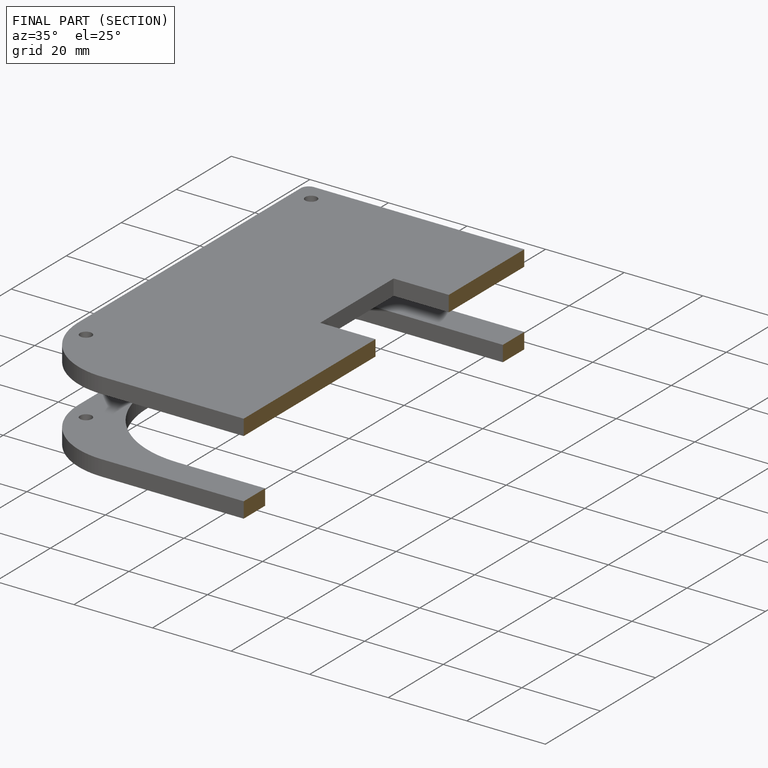
[diagram: finished part — half-section view (interior)]
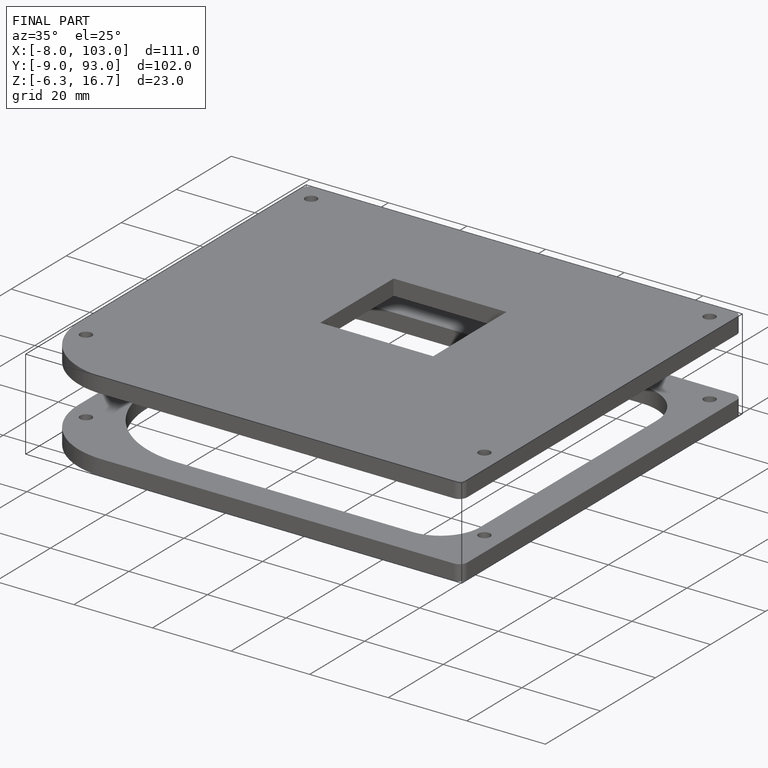
[diagram: finished part — iso view with bounding-box wireframe]
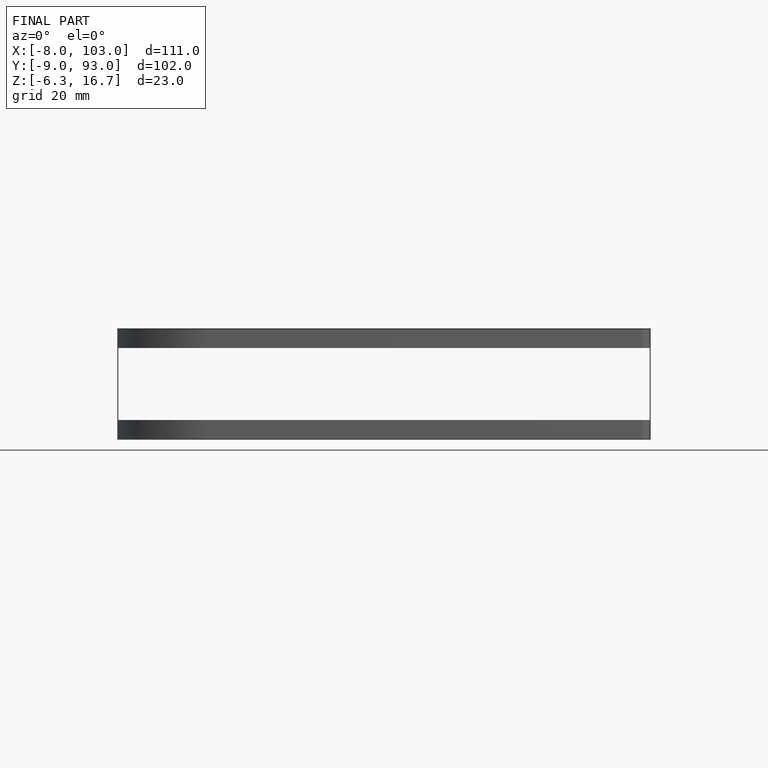
[diagram: finished part — front view with bounding-box wireframe]
